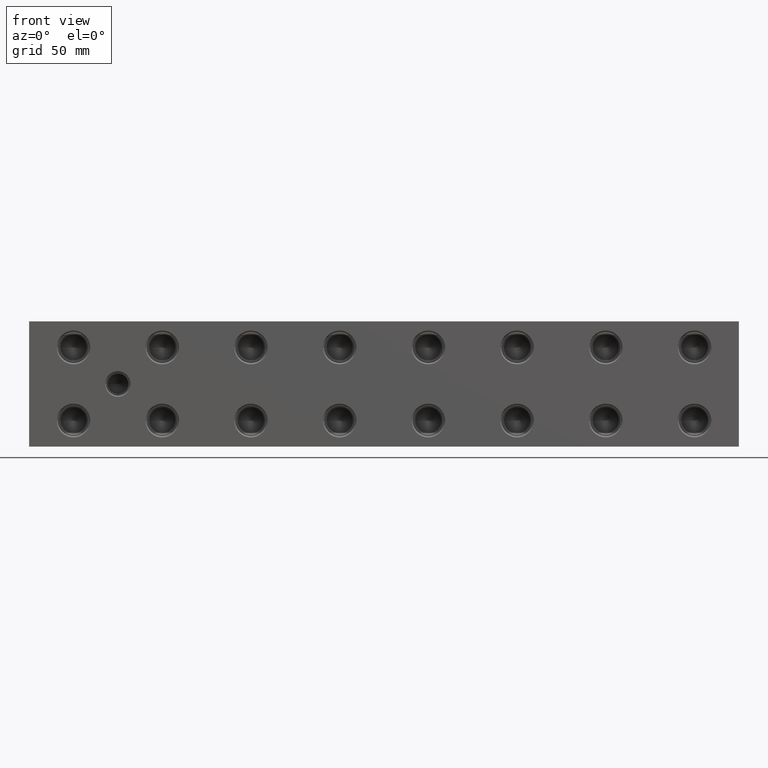
[diagram: clean part render]
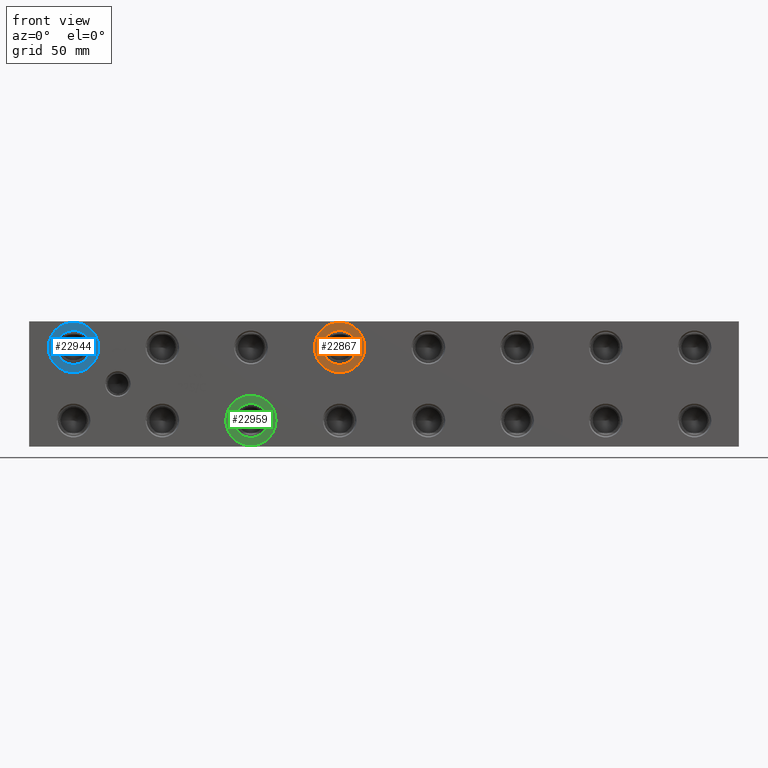
[diagram: same view with three faces highlighted in distinct colors, each labeled with its STEP entity id]
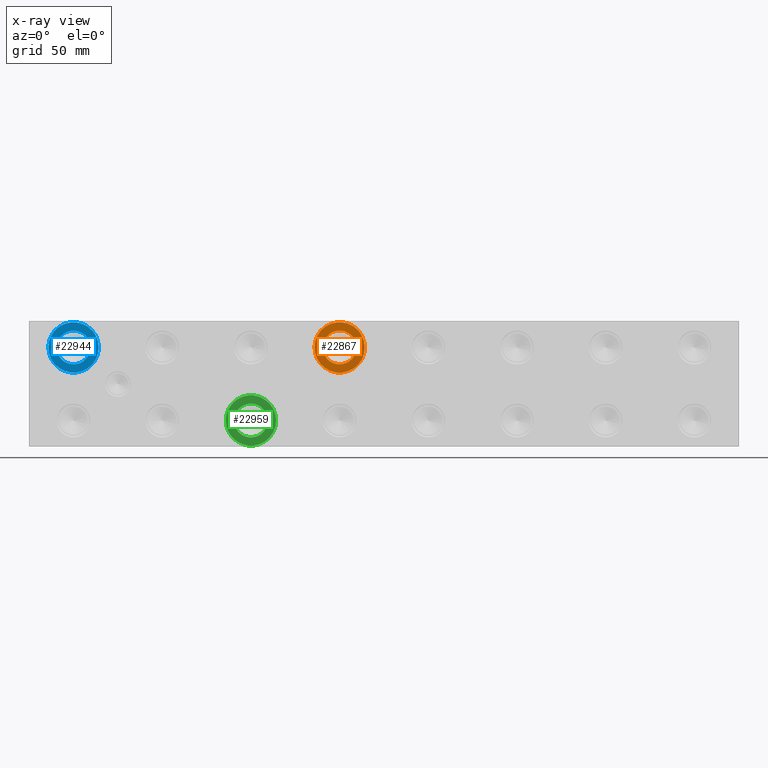
[diagram: x-ray of the same camera — body ghosted, the three highlighted faces saturated]
A machine part, front view with three faces highlighted in distinct colors.
The next image is the same camera in x-ray (body ghosted, the three faces saturated) — at least one of them is partly hidden behind the body in this view.
Their STEP definitions:

[orange] entity #22867 — the highlighted planar face has unit normal (0, 1, 0).
#470=CIRCLE('',#23902,15.3162);
#471=CIRCLE('',#23903,15.3162);
#472=CIRCLE('',#23905,10.2997);
#473=CIRCLE('',#23906,10.2997);
#1348=FACE_BOUND('',#4155,.T.);
#1980=PLANE('',#23904);
#2825=FACE_OUTER_BOUND('',#4154,.T.);
#4154=EDGE_LOOP('',(#18743,#18744));
#4155=EDGE_LOOP('',(#18745,#18746));
#10478=VERTEX_POINT('',#38409);
#10479=VERTEX_POINT('',#38411);
#10480=VERTEX_POINT('',#38415);
#10481=VERTEX_POINT('',#38416);
#13452=EDGE_CURVE('',#10478,#10479,#470,.T.);
#13453=EDGE_CURVE('',#10479,#10478,#471,.T.);
#13454=EDGE_CURVE('',#10480,#10481,#472,.T.);
#13455=EDGE_CURVE('',#10481,#10480,#473,.T.);
#18743=ORIENTED_EDGE('',*,*,#13453,.F.);
#18744=ORIENTED_EDGE('',*,*,#13452,.F.);
#18745=ORIENTED_EDGE('',*,*,#13454,.T.);
#18746=ORIENTED_EDGE('',*,*,#13455,.T.);
#22867=ADVANCED_FACE('',(#2825,#1348),#1980,.F.);
#23902=AXIS2_PLACEMENT_3D('',#38412,#27749,#27750);
#23903=AXIS2_PLACEMENT_3D('',#38413,#27751,#27752);
#23904=AXIS2_PLACEMENT_3D('',#38414,#27753,#27754);
#23905=AXIS2_PLACEMENT_3D('',#38417,#27755,#27756);
#23906=AXIS2_PLACEMENT_3D('',#38418,#27757,#27758);
#27749=DIRECTION('center_axis',(0.,1.,0.));
#27750=DIRECTION('ref_axis',(1.,0.,0.));
#27751=DIRECTION('center_axis',(0.,1.,0.));
#27752=DIRECTION('ref_axis',(1.,0.,0.));
#27753=DIRECTION('center_axis',(0.,1.,0.));
#27754=DIRECTION('ref_axis',(0.,0.,1.));
#27755=DIRECTION('center_axis',(0.,1.,0.));
#27756=DIRECTION('ref_axis',(1.,0.,0.));
#27757=DIRECTION('center_axis',(0.,1.,0.));
#27758=DIRECTION('ref_axis',(1.,0.,0.));
#38409=CARTESIAN_POINT('',(173.5836,0.7874,60.325));
#38411=CARTESIAN_POINT('',(204.216,0.7874,60.325));
#38412=CARTESIAN_POINT('Origin',(188.8998,0.7874,60.325));
#38413=CARTESIAN_POINT('Origin',(188.8998,0.7874,60.325));
#38414=CARTESIAN_POINT('Origin',(199.1995,0.7874,60.325));
#38415=CARTESIAN_POINT('',(199.1995,0.7874,60.325));
#38416=CARTESIAN_POINT('',(178.6001,0.7874,60.325));
#38417=CARTESIAN_POINT('Origin',(188.8998,0.7874,60.325));
#38418=CARTESIAN_POINT('Origin',(188.8998,0.7874,60.325));

[blue] entity #22944 — the highlighted planar face has unit normal (0, 1, 0).
#600=CIRCLE('',#24109,15.3162);
#601=CIRCLE('',#24110,15.3162);
#602=CIRCLE('',#24112,10.2997);
#603=CIRCLE('',#24113,10.2997);
#1362=FACE_BOUND('',#4246,.T.);
#1994=PLANE('',#24111);
#2902=FACE_OUTER_BOUND('',#4245,.T.);
#4245=EDGE_LOOP('',(#19139,#19140));
#4246=EDGE_LOOP('',(#19141,#19142));
#10613=VERTEX_POINT('',#38814);
#10614=VERTEX_POINT('',#38816);
#10615=VERTEX_POINT('',#38820);
#10616=VERTEX_POINT('',#38821);
#13645=EDGE_CURVE('',#10613,#10614,#600,.T.);
#13646=EDGE_CURVE('',#10614,#10613,#601,.T.);
#13647=EDGE_CURVE('',#10615,#10616,#602,.T.);
#13648=EDGE_CURVE('',#10616,#10615,#603,.T.);
#19139=ORIENTED_EDGE('',*,*,#13646,.F.);
#19140=ORIENTED_EDGE('',*,*,#13645,.F.);
#19141=ORIENTED_EDGE('',*,*,#13647,.T.);
#19142=ORIENTED_EDGE('',*,*,#13648,.T.);
#22944=ADVANCED_FACE('',(#2902,#1362),#1994,.F.);
#24109=AXIS2_PLACEMENT_3D('',#38817,#28226,#28227);
#24110=AXIS2_PLACEMENT_3D('',#38818,#28228,#28229);
#24111=AXIS2_PLACEMENT_3D('',#38819,#28230,#28231);
#24112=AXIS2_PLACEMENT_3D('',#38822,#28232,#28233);
#24113=AXIS2_PLACEMENT_3D('',#38823,#28234,#28235);
#28226=DIRECTION('center_axis',(0.,1.,0.));
#28227=DIRECTION('ref_axis',(1.,0.,0.));
#28228=DIRECTION('center_axis',(0.,1.,0.));
#28229=DIRECTION('ref_axis',(1.,0.,0.));
#28230=DIRECTION('center_axis',(0.,1.,0.));
#28231=DIRECTION('ref_axis',(0.,0.,1.));
#28232=DIRECTION('center_axis',(0.,1.,0.));
#28233=DIRECTION('ref_axis',(1.,0.,0.));
#28234=DIRECTION('center_axis',(0.,1.,0.));
#28235=DIRECTION('ref_axis',(1.,0.,0.));
#38814=CARTESIAN_POINT('',(11.6586,0.7874,60.325));
#38816=CARTESIAN_POINT('',(42.291,0.7874,60.325));
#38817=CARTESIAN_POINT('Origin',(26.9748,0.7874,60.325));
#38818=CARTESIAN_POINT('Origin',(26.9748,0.7874,60.325));
#38819=CARTESIAN_POINT('Origin',(37.2745,0.7874,60.325));
#38820=CARTESIAN_POINT('',(37.2745,0.7874,60.325));
#38821=CARTESIAN_POINT('',(16.6751,0.787399999999999,60.325));
#38822=CARTESIAN_POINT('Origin',(26.9748,0.7874,60.325));
#38823=CARTESIAN_POINT('Origin',(26.9748,0.7874,60.325));

[green] entity #22959 — the highlighted planar face has unit normal (0, 1, 0).
#627=CIRCLE('',#24151,15.3162);
#628=CIRCLE('',#24152,15.3162);
#629=CIRCLE('',#24154,10.2997);
#630=CIRCLE('',#24155,10.2997);
#1365=FACE_BOUND('',#4264,.T.);
#1997=PLANE('',#24153);
#2917=FACE_OUTER_BOUND('',#4263,.T.);
#4263=EDGE_LOOP('',(#19220,#19221));
#4264=EDGE_LOOP('',(#19222,#19223));
#10640=VERTEX_POINT('',#38895);
#10641=VERTEX_POINT('',#38897);
#10642=VERTEX_POINT('',#38901);
#10643=VERTEX_POINT('',#38902);
#13684=EDGE_CURVE('',#10640,#10641,#627,.T.);
#13685=EDGE_CURVE('',#10641,#10640,#628,.T.);
#13686=EDGE_CURVE('',#10642,#10643,#629,.T.);
#13687=EDGE_CURVE('',#10643,#10642,#630,.T.);
#19220=ORIENTED_EDGE('',*,*,#13685,.F.);
#19221=ORIENTED_EDGE('',*,*,#13684,.F.);
#19222=ORIENTED_EDGE('',*,*,#13686,.T.);
#19223=ORIENTED_EDGE('',*,*,#13687,.T.);
#22959=ADVANCED_FACE('',(#2917,#1365),#1997,.F.);
#24151=AXIS2_PLACEMENT_3D('',#38898,#28322,#28323);
#24152=AXIS2_PLACEMENT_3D('',#38899,#28324,#28325);
#24153=AXIS2_PLACEMENT_3D('',#38900,#28326,#28327);
#24154=AXIS2_PLACEMENT_3D('',#38903,#28328,#28329);
#24155=AXIS2_PLACEMENT_3D('',#38904,#28330,#28331);
#28322=DIRECTION('center_axis',(0.,1.,0.));
#28323=DIRECTION('ref_axis',(1.,0.,0.));
#28324=DIRECTION('center_axis',(0.,1.,0.));
#28325=DIRECTION('ref_axis',(1.,0.,0.));
#28326=DIRECTION('center_axis',(0.,1.,0.));
#28327=DIRECTION('ref_axis',(0.,0.,1.));
#28328=DIRECTION('center_axis',(0.,1.,0.));
#28329=DIRECTION('ref_axis',(1.,0.,0.));
#28330=DIRECTION('center_axis',(0.,1.,0.));
#28331=DIRECTION('ref_axis',(1.,0.,0.));
#38895=CARTESIAN_POINT('',(119.6086,0.7874,15.875));
#38897=CARTESIAN_POINT('',(150.241,0.7874,15.875));
#38898=CARTESIAN_POINT('Origin',(134.9248,0.7874,15.875));
#38899=CARTESIAN_POINT('Origin',(134.9248,0.7874,15.875));
#38900=CARTESIAN_POINT('Origin',(145.2245,0.7874,15.875));
#38901=CARTESIAN_POINT('',(145.2245,0.7874,15.875));
#38902=CARTESIAN_POINT('',(124.6251,0.787399999999997,15.875));
#38903=CARTESIAN_POINT('Origin',(134.9248,0.7874,15.875));
#38904=CARTESIAN_POINT('Origin',(134.9248,0.7874,15.875));